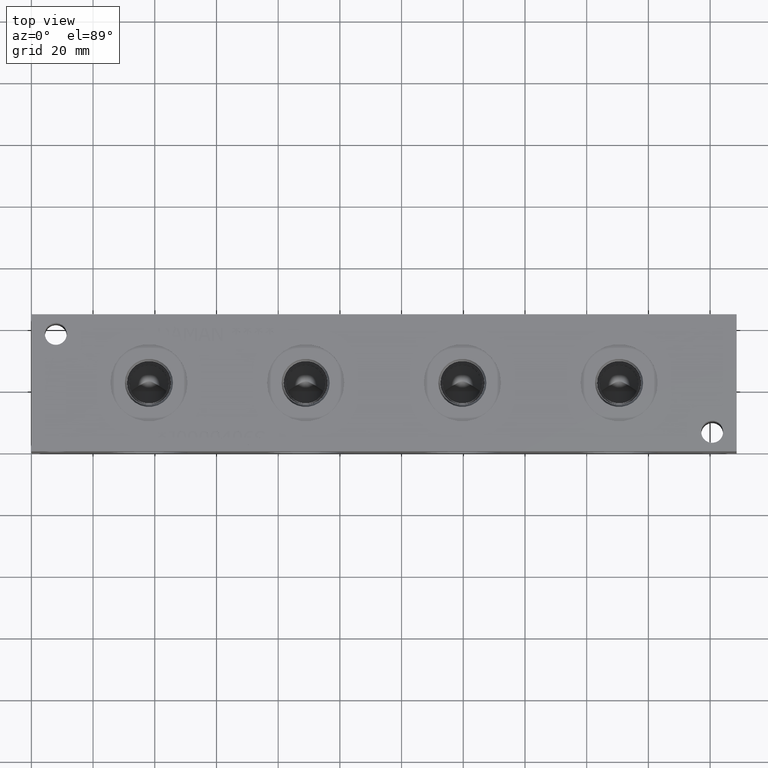
[diagram: clean part render]
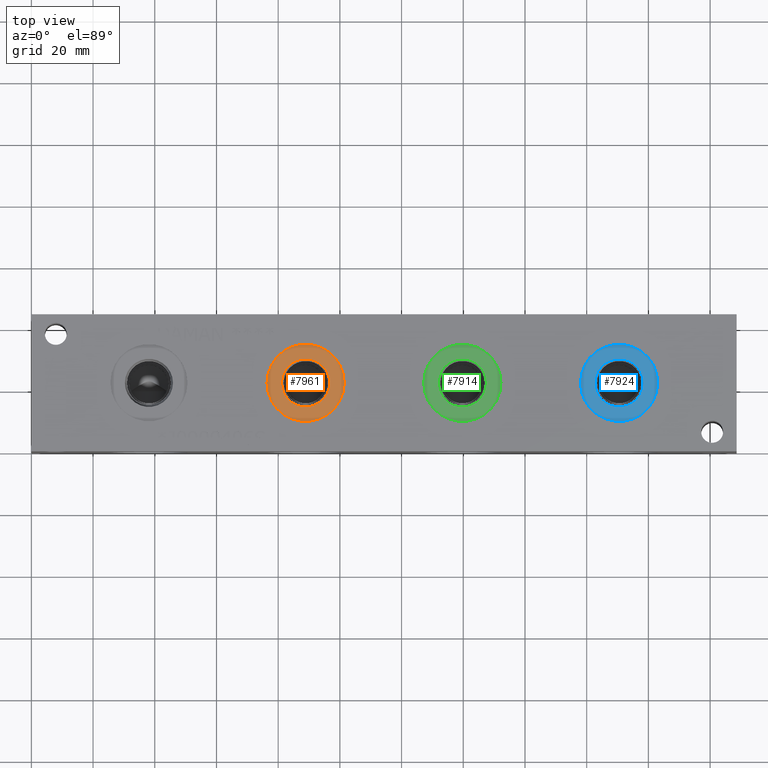
[diagram: same view with three faces highlighted in distinct colors, each labeled with its STEP entity id]
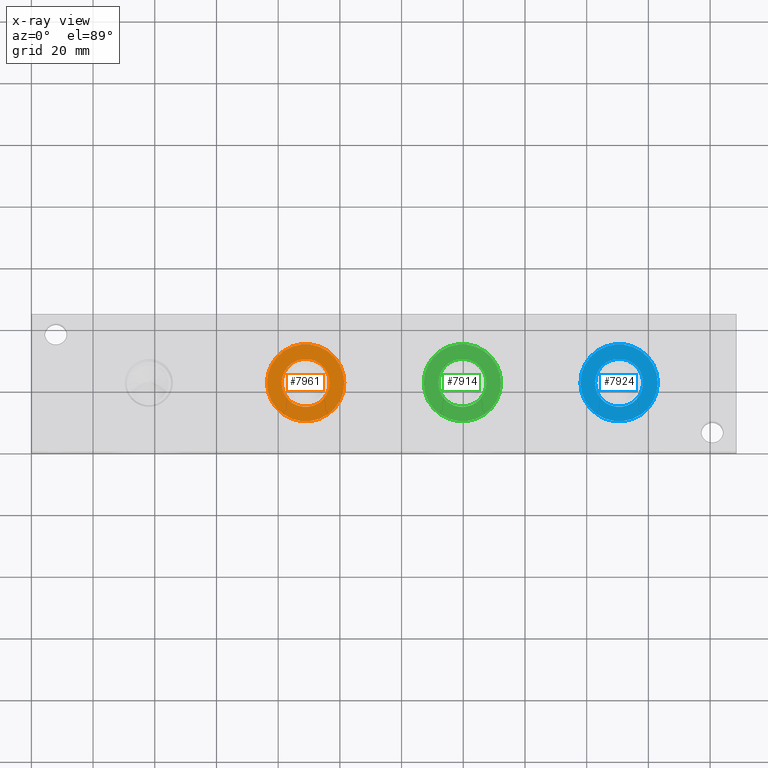
[diagram: x-ray of the same camera — body ghosted, the three highlighted faces saturated]
A machine part, top view with three faces highlighted in distinct colors.
The next image is the same camera in x-ray (body ghosted, the three faces saturated) — at least one of them is partly hidden behind the body in this view.
Their STEP definitions:

[orange] entity #7961 — the highlighted planar face has unit normal (0, 0, -1).
#210=CIRCLE('',#8382,12.5095);
#211=CIRCLE('',#8383,12.5095);
#212=CIRCLE('',#8385,7.79780000000001);
#213=CIRCLE('',#8386,7.79780000000001);
#312=FACE_BOUND('',#1521,.T.);
#1061=FACE_OUTER_BOUND('',#1520,.T.);
#1520=EDGE_LOOP('',(#6806,#6807));
#1521=EDGE_LOOP('',(#6808,#6809));
#3644=VERTEX_POINT('',#13750);
#3645=VERTEX_POINT('',#13752);
#3646=VERTEX_POINT('',#13756);
#3647=VERTEX_POINT('',#13757);
#4718=EDGE_CURVE('',#3644,#3645,#210,.T.);
#4719=EDGE_CURVE('',#3645,#3644,#211,.T.);
#4720=EDGE_CURVE('',#3646,#3647,#212,.T.);
#4721=EDGE_CURVE('',#3647,#3646,#213,.T.);
#6806=ORIENTED_EDGE('',*,*,#4719,.F.);
#6807=ORIENTED_EDGE('',*,*,#4718,.F.);
#6808=ORIENTED_EDGE('',*,*,#4720,.T.);
#6809=ORIENTED_EDGE('',*,*,#4721,.T.);
#7275=PLANE('',#8384);
#7961=ADVANCED_FACE('',(#1061,#312),#7275,.F.);
#8382=AXIS2_PLACEMENT_3D('',#13753,#9874,#9875);
#8383=AXIS2_PLACEMENT_3D('',#13754,#9876,#9877);
#8384=AXIS2_PLACEMENT_3D('',#13755,#9878,#9879);
#8385=AXIS2_PLACEMENT_3D('',#13758,#9880,#9881);
#8386=AXIS2_PLACEMENT_3D('',#13759,#9882,#9883);
#9874=DIRECTION('center_axis',(0.,0.,-1.));
#9875=DIRECTION('ref_axis',(1.,0.,0.));
#9876=DIRECTION('center_axis',(0.,0.,-1.));
#9877=DIRECTION('ref_axis',(1.,0.,0.));
#9878=DIRECTION('center_axis',(0.,0.,-1.));
#9879=DIRECTION('ref_axis',(-1.,0.,0.));
#9880=DIRECTION('center_axis',(0.,0.,-1.));
#9881=DIRECTION('ref_axis',(1.,0.,0.));
#9882=DIRECTION('center_axis',(0.,0.,-1.));
#9883=DIRECTION('ref_axis',(1.,0.,0.));
#13750=CARTESIAN_POINT('',(76.3905,22.225,43.6626));
#13752=CARTESIAN_POINT('',(101.4095,22.225,43.6626));
#13753=CARTESIAN_POINT('Origin',(88.9,22.225,43.6626));
#13754=CARTESIAN_POINT('Origin',(88.9,22.225,43.6626));
#13755=CARTESIAN_POINT('Origin',(96.6978,22.225,43.6626));
#13756=CARTESIAN_POINT('',(96.6978,22.225,43.6626));
#13757=CARTESIAN_POINT('',(81.1022,22.225,43.6626));
#13758=CARTESIAN_POINT('Origin',(88.9,22.225,43.6626));
#13759=CARTESIAN_POINT('Origin',(88.9,22.225,43.6626));

[blue] entity #7924 — the highlighted planar face has unit normal (0, 0, -1).
#156=CIRCLE('',#8282,12.5095);
#157=CIRCLE('',#8283,12.5095);
#158=CIRCLE('',#8285,7.79779999999999);
#159=CIRCLE('',#8286,7.79779999999999);
#307=FACE_BOUND('',#1479,.T.);
#1024=FACE_OUTER_BOUND('',#1478,.T.);
#1478=EDGE_LOOP('',(#6644,#6645));
#1479=EDGE_LOOP('',(#6646,#6647));
#3590=VERTEX_POINT('',#13504);
#3591=VERTEX_POINT('',#13506);
#3592=VERTEX_POINT('',#13510);
#3593=VERTEX_POINT('',#13511);
#4632=EDGE_CURVE('',#3590,#3591,#156,.T.);
#4633=EDGE_CURVE('',#3591,#3590,#157,.T.);
#4634=EDGE_CURVE('',#3592,#3593,#158,.T.);
#4635=EDGE_CURVE('',#3593,#3592,#159,.T.);
#6644=ORIENTED_EDGE('',*,*,#4633,.F.);
#6645=ORIENTED_EDGE('',*,*,#4632,.F.);
#6646=ORIENTED_EDGE('',*,*,#4634,.T.);
#6647=ORIENTED_EDGE('',*,*,#4635,.T.);
#7270=PLANE('',#8284);
#7924=ADVANCED_FACE('',(#1024,#307),#7270,.F.);
#8282=AXIS2_PLACEMENT_3D('',#13507,#9660,#9661);
#8283=AXIS2_PLACEMENT_3D('',#13508,#9662,#9663);
#8284=AXIS2_PLACEMENT_3D('',#13509,#9664,#9665);
#8285=AXIS2_PLACEMENT_3D('',#13512,#9666,#9667);
#8286=AXIS2_PLACEMENT_3D('',#13513,#9668,#9669);
#9660=DIRECTION('center_axis',(0.,0.,-1.));
#9661=DIRECTION('ref_axis',(1.,0.,0.));
#9662=DIRECTION('center_axis',(0.,0.,-1.));
#9663=DIRECTION('ref_axis',(1.,0.,0.));
#9664=DIRECTION('center_axis',(0.,0.,-1.));
#9665=DIRECTION('ref_axis',(-1.,0.,0.));
#9666=DIRECTION('center_axis',(0.,0.,-1.));
#9667=DIRECTION('ref_axis',(1.,0.,0.));
#9668=DIRECTION('center_axis',(0.,0.,-1.));
#9669=DIRECTION('ref_axis',(1.,0.,0.));
#13504=CARTESIAN_POINT('',(177.9905,22.225,43.6626));
#13506=CARTESIAN_POINT('',(203.0095,22.225,43.6626));
#13507=CARTESIAN_POINT('Origin',(190.5,22.225,43.6626));
#13508=CARTESIAN_POINT('Origin',(190.5,22.225,43.6626));
#13509=CARTESIAN_POINT('Origin',(198.2978,22.225,43.6626));
#13510=CARTESIAN_POINT('',(198.2978,22.225,43.6626));
#13511=CARTESIAN_POINT('',(182.7022,22.225,43.6626));
#13512=CARTESIAN_POINT('Origin',(190.5,22.225,43.6626));
#13513=CARTESIAN_POINT('Origin',(190.5,22.225,43.6626));

[green] entity #7914 — the highlighted planar face has unit normal (0, 0, -1).
#136=CIRCLE('',#8252,12.5095);
#137=CIRCLE('',#8253,12.5095);
#138=CIRCLE('',#8255,7.79780000000001);
#139=CIRCLE('',#8256,7.79780000000001);
#305=FACE_BOUND('',#1467,.T.);
#1014=FACE_OUTER_BOUND('',#1466,.T.);
#1466=EDGE_LOOP('',(#6590,#6591));
#1467=EDGE_LOOP('',(#6592,#6593));
#3570=VERTEX_POINT('',#13446);
#3571=VERTEX_POINT('',#13448);
#3572=VERTEX_POINT('',#13452);
#3573=VERTEX_POINT('',#13453);
#4604=EDGE_CURVE('',#3570,#3571,#136,.T.);
#4605=EDGE_CURVE('',#3571,#3570,#137,.T.);
#4606=EDGE_CURVE('',#3572,#3573,#138,.T.);
#4607=EDGE_CURVE('',#3573,#3572,#139,.T.);
#6590=ORIENTED_EDGE('',*,*,#4605,.F.);
#6591=ORIENTED_EDGE('',*,*,#4604,.F.);
#6592=ORIENTED_EDGE('',*,*,#4606,.T.);
#6593=ORIENTED_EDGE('',*,*,#4607,.T.);
#7268=PLANE('',#8254);
#7914=ADVANCED_FACE('',(#1014,#305),#7268,.F.);
#8252=AXIS2_PLACEMENT_3D('',#13449,#9592,#9593);
#8253=AXIS2_PLACEMENT_3D('',#13450,#9594,#9595);
#8254=AXIS2_PLACEMENT_3D('',#13451,#9596,#9597);
#8255=AXIS2_PLACEMENT_3D('',#13454,#9598,#9599);
#8256=AXIS2_PLACEMENT_3D('',#13455,#9600,#9601);
#9592=DIRECTION('center_axis',(0.,0.,-1.));
#9593=DIRECTION('ref_axis',(1.,0.,0.));
#9594=DIRECTION('center_axis',(0.,0.,-1.));
#9595=DIRECTION('ref_axis',(1.,0.,0.));
#9596=DIRECTION('center_axis',(0.,0.,-1.));
#9597=DIRECTION('ref_axis',(-1.,0.,0.));
#9598=DIRECTION('center_axis',(0.,0.,-1.));
#9599=DIRECTION('ref_axis',(1.,0.,0.));
#9600=DIRECTION('center_axis',(0.,0.,-1.));
#9601=DIRECTION('ref_axis',(1.,0.,0.));
#13446=CARTESIAN_POINT('',(127.1905,22.225,43.6626));
#13448=CARTESIAN_POINT('',(152.2095,22.225,43.6626));
#13449=CARTESIAN_POINT('Origin',(139.7,22.225,43.6626));
#13450=CARTESIAN_POINT('Origin',(139.7,22.225,43.6626));
#13451=CARTESIAN_POINT('Origin',(147.4978,22.225,43.6626));
#13452=CARTESIAN_POINT('',(147.4978,22.225,43.6626));
#13453=CARTESIAN_POINT('',(131.9022,22.225,43.6626));
#13454=CARTESIAN_POINT('Origin',(139.7,22.225,43.6626));
#13455=CARTESIAN_POINT('Origin',(139.7,22.225,43.6626));